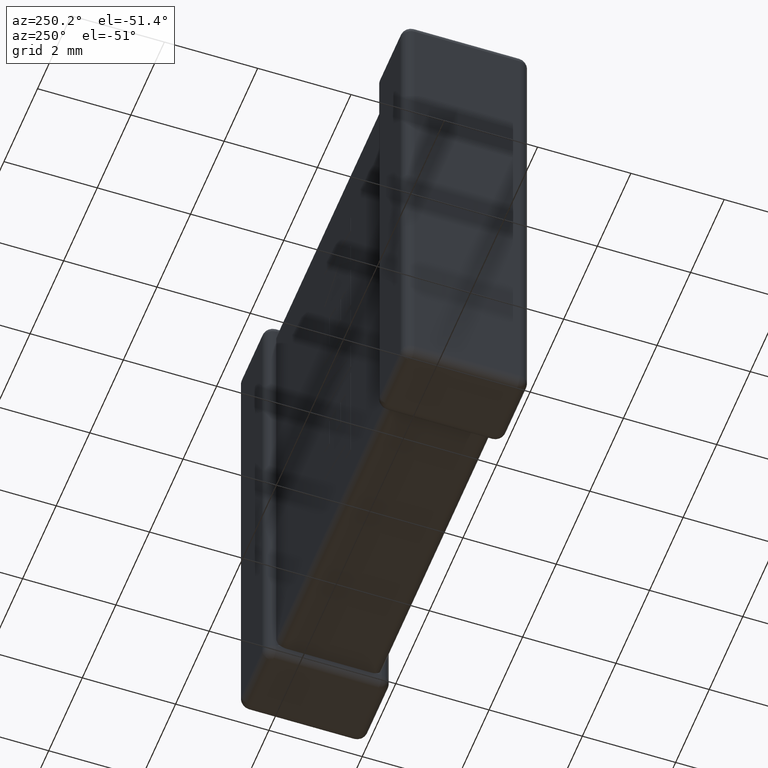
[diagram: clean part render]
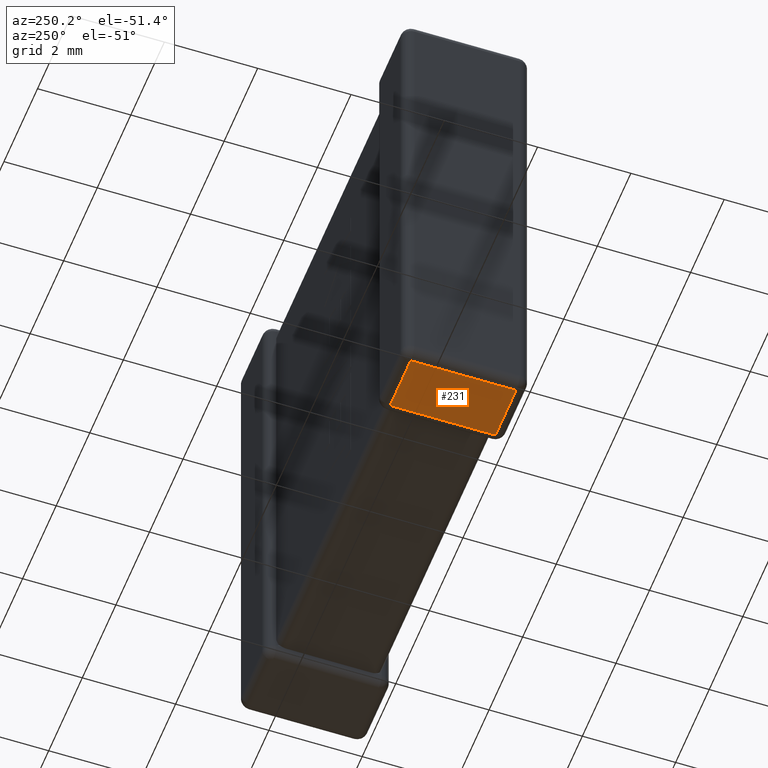
[diagram: same view with one face highlighted and labeled with its STEP entity id]
A machine part, auxiliary view. The second image highlights one B-rep face of the part: STEP entity #231.
In plain terms, the highlighted planar face has unit normal (0, 0, 1).
Its self-contained STEP definition (entity closure, byte-faithful):
#77 = VERTEX_POINT ( 'NONE', #2479 ) ;
#192 = ORIENTED_EDGE ( 'NONE', *, *, #347, .T. ) ;
#231 = ADVANCED_FACE ( 'NONE', ( #1229 ), #245, .F. ) ;
#245 = PLANE ( 'NONE',  #2048 ) ;
#347 = EDGE_CURVE ( 'NONE', #3150, #4060, #2674, .T. ) ;
#410 = DIRECTION ( 'NONE',  ( 1.000000000000000000, -0.000000000000000000, -0.000000000000000000 ) ) ;
#420 = DIRECTION ( 'NONE',  ( 1.000000000000000000, 0.000000000000000000, -0.000000000000000000 ) ) ;
#445 = DIRECTION ( 'NONE',  ( -1.000000000000000000, -0.000000000000000000, 0.000000000000000000 ) ) ;
#554 = VECTOR ( 'NONE', #410, 1000.000000000000000 ) ;
#969 = VECTOR ( 'NONE', #3061, 1000.000000000000000 ) ;
#1079 = LINE ( 'NONE', #1779, #3409 ) ;
#1229 = FACE_OUTER_BOUND ( 'NONE', #3821, .T. ) ;
#1323 = DIRECTION ( 'NONE',  ( 0.000000000000000000, 0.000000000000000000, 1.000000000000000000 ) ) ;
#1447 = CARTESIAN_POINT ( 'NONE',  ( 0.2204800000000003424, 2.479520000000000390, -10.59999999999999964 ) ) ;
#1606 = CARTESIAN_POINT ( 'NONE',  ( 1.449520000000002806, -8.310984011742842305E-15, -10.59999999999999964 ) ) ;
#1779 = CARTESIAN_POINT ( 'NONE',  ( 0.2204800000000003424, 2.700000000000000178, -10.59999999999999964 ) ) ;
#1937 = EDGE_CURVE ( 'NONE', #4060, #2934, #1079, .T. ) ;
#2048 = AXIS2_PLACEMENT_3D ( 'NONE', #2107, #1323, #420 ) ;
#2058 = ORIENTED_EDGE ( 'NONE', *, *, #4396, .T. ) ;
#2107 = CARTESIAN_POINT ( 'NONE',  ( 9.900000000000000355, 0.000000000000000000, -10.59999999999999964 ) ) ;
#2322 = CARTESIAN_POINT ( 'NONE',  ( 9.900000000000000355, 0.2204799999999999538, -10.59999999999999964 ) ) ;
#2479 = CARTESIAN_POINT ( 'NONE',  ( 1.449520000000000364, 2.479520000000000390, -10.59999999999999964 ) ) ;
#2521 = CARTESIAN_POINT ( 'NONE',  ( 1.449520000000002584, 0.2204799999999999538, -10.59999999999999964 ) ) ;
#2674 = LINE ( 'NONE', #2322, #3317 ) ;
#2934 = VERTEX_POINT ( 'NONE', #1447 ) ;
#3061 = DIRECTION ( 'NONE',  ( 9.834925367248775703E-16, -1.000000000000000000, 0.000000000000000000 ) ) ;
#3107 = EDGE_CURVE ( 'NONE', #2934, #77, #4282, .T. ) ;
#3150 = VERTEX_POINT ( 'NONE', #2521 ) ;
#3193 = CARTESIAN_POINT ( 'NONE',  ( 0.2204800000000003424, 0.2204799999999999538, -10.59999999999999964 ) ) ;
#3317 = VECTOR ( 'NONE', #445, 1000.000000000000000 ) ;
#3371 = LINE ( 'NONE', #1606, #969 ) ;
#3409 = VECTOR ( 'NONE', #3523, 1000.000000000000000 ) ;
#3523 = DIRECTION ( 'NONE',  ( 0.000000000000000000, 1.000000000000000000, -0.000000000000000000 ) ) ;
#3821 = EDGE_LOOP ( 'NONE', ( #2058, #192, #4112, #4563 ) ) ;
#4060 = VERTEX_POINT ( 'NONE', #3193 ) ;
#4112 = ORIENTED_EDGE ( 'NONE', *, *, #1937, .T. ) ;
#4282 = LINE ( 'NONE', #4568, #554 ) ;
#4396 = EDGE_CURVE ( 'NONE', #77, #3150, #3371, .T. ) ;
#4563 = ORIENTED_EDGE ( 'NONE', *, *, #3107, .T. ) ;
#4568 = CARTESIAN_POINT ( 'NONE',  ( 9.900000000000000355, 2.479520000000000390, -10.59999999999999964 ) ) ;